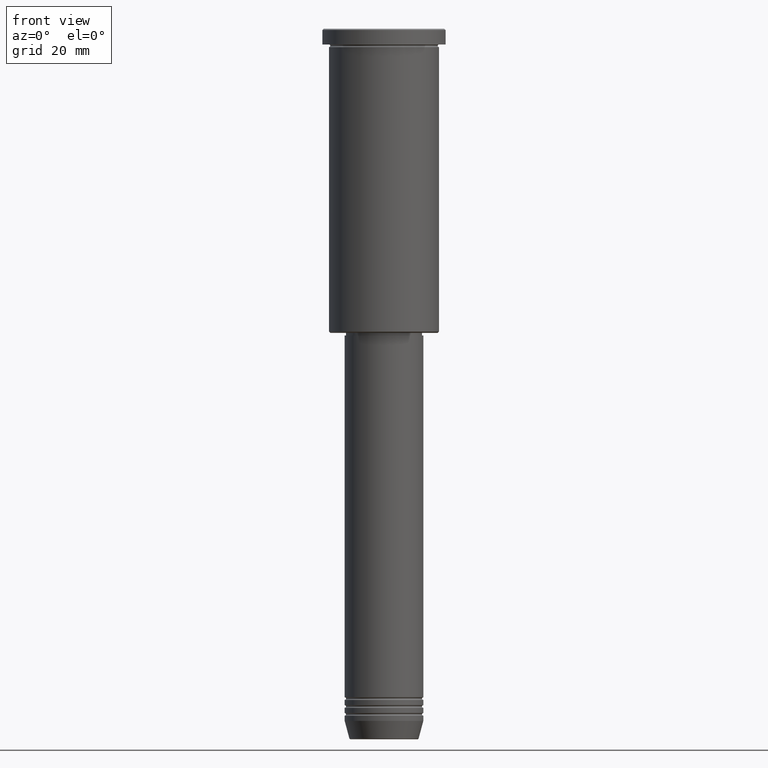
[diagram: clean part render]
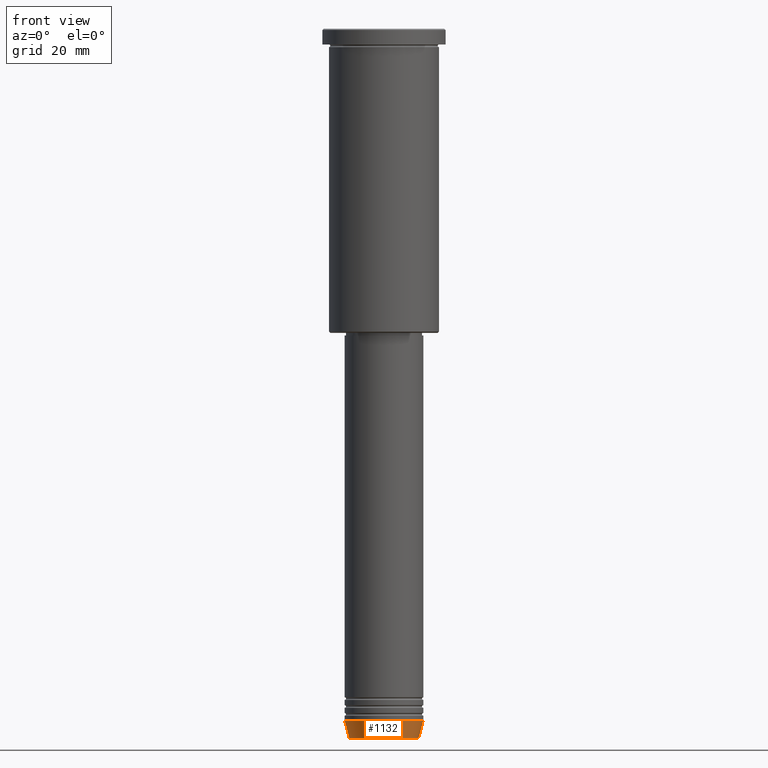
[diagram: same view with one face highlighted and labeled with its STEP entity id]
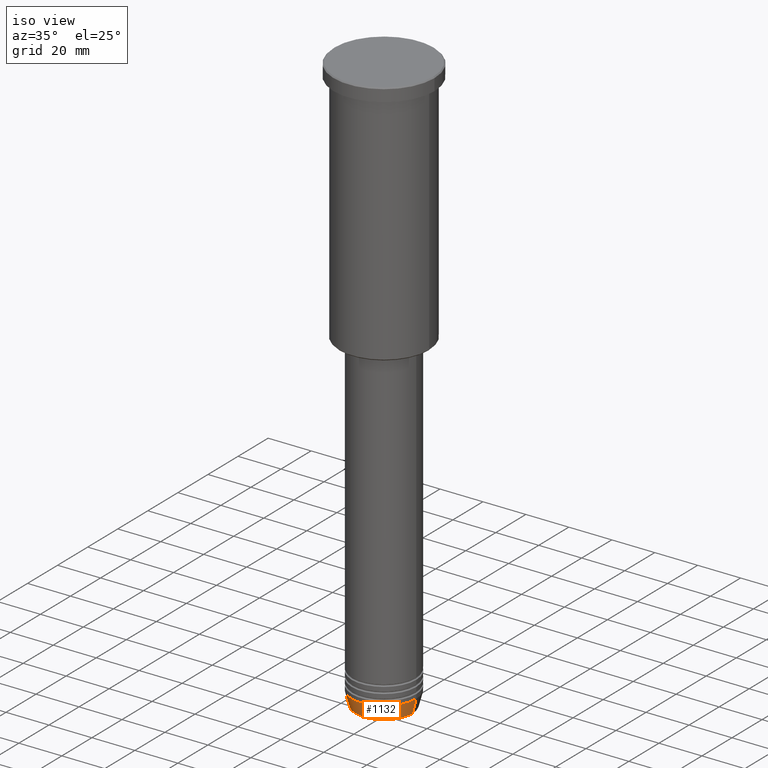
[diagram: same view with one face highlighted and labeled with its STEP entity id]
A machine part, front view. The second image highlights one B-rep face of the part: STEP entity #1132.
A second angle (iso view) of the same face is appended — the face is thin or edge-on in the first view.
In plain terms, the highlighted conical surface has half-angle 15 deg.
Its self-contained STEP definition (entity closure, byte-faithful):
#47 = DIRECTION ( 'NONE',  ( 1.000000000000000000, 0.000000000000000000, 0.000000000000000000 ) ) ;
#98 = CARTESIAN_POINT ( 'NONE',  ( -13.22365507213718772, 1.728200442216588386E-15, -270.6294095225513274 ) ) ;
#127 = CARTESIAN_POINT ( 'NONE',  ( 15.00000000000000000, 0.000000000000000000, -264.0000000000000000 ) ) ;
#152 = AXIS2_PLACEMENT_3D ( 'NONE', #393, #576, #47 ) ;
#171 = CARTESIAN_POINT ( 'NONE',  ( -15.00000000000000000, 1.836970198721029589E-15, -264.0000000000000000 ) ) ;
#227 = VERTEX_POINT ( 'NONE', #98 ) ;
#260 = CARTESIAN_POINT ( 'NONE',  ( 15.00000000000000000, 0.000000000000000000, -264.0000000000000000 ) ) ;
#261 = ORIENTED_EDGE ( 'NONE', *, *, #652, .F. ) ;
#265 = DIRECTION ( 'NONE',  ( 1.000000000000000000, 0.000000000000000000, 0.000000000000000000 ) ) ;
#276 = DIRECTION ( 'NONE',  ( 1.000000000000000000, 0.000000000000000000, 0.000000000000000000 ) ) ;
#279 = CIRCLE ( 'NONE', #470, 13.22365507213718772 ) ;
#324 = EDGE_LOOP ( 'NONE', ( #788, #595, #1096, #261 ) ) ;
#347 = DIRECTION ( 'NONE',  ( -0.2588190451025213501, 3.169619151431772337E-17, 0.9659258262890680902 ) ) ;
#393 = CARTESIAN_POINT ( 'NONE',  ( 0.000000000000000000, 0.000000000000000000, -264.0000000000000000 ) ) ;
#470 = AXIS2_PLACEMENT_3D ( 'NONE', #892, #720, #265 ) ;
#500 = EDGE_CURVE ( 'NONE', #227, #911, #797, .T. ) ;
#563 = CARTESIAN_POINT ( 'NONE',  ( -15.00000000000000000, 1.836970198721029589E-15, -264.0000000000000000 ) ) ;
#576 = DIRECTION ( 'NONE',  ( -0.000000000000000000, -0.000000000000000000, 1.000000000000000000 ) ) ;
#595 = ORIENTED_EDGE ( 'NONE', *, *, #837, .T. ) ;
#628 = CIRCLE ( 'NONE', #152, 15.00000000000000000 ) ;
#652 = EDGE_CURVE ( 'NONE', #911, #699, #628, .T. ) ;
#663 = EDGE_CURVE ( 'NONE', #1146, #699, #1116, .T. ) ;
#699 = VERTEX_POINT ( 'NONE', #260 ) ;
#720 = DIRECTION ( 'NONE',  ( -0.000000000000000000, -0.000000000000000000, 1.000000000000000000 ) ) ;
#724 = VECTOR ( 'NONE', #347, 1000.000000000000000 ) ;
#742 = DIRECTION ( 'NONE',  ( -0.000000000000000000, -0.000000000000000000, 1.000000000000000000 ) ) ;
#748 = CARTESIAN_POINT ( 'NONE',  ( 0.000000000000000000, 0.000000000000000000, -264.0000000000000000 ) ) ;
#776 = DIRECTION ( 'NONE',  ( 0.2588190451025213501, 0.000000000000000000, 0.9659258262890680902 ) ) ;
#788 = ORIENTED_EDGE ( 'NONE', *, *, #500, .F. ) ;
#797 = LINE ( 'NONE', #171, #724 ) ;
#837 = EDGE_CURVE ( 'NONE', #227, #1146, #279, .T. ) ;
#847 = FACE_OUTER_BOUND ( 'NONE', #324, .T. ) ;
#892 = CARTESIAN_POINT ( 'NONE',  ( 0.000000000000000000, 0.000000000000000000, -270.6294095225513274 ) ) ;
#911 = VERTEX_POINT ( 'NONE', #563 ) ;
#921 = VECTOR ( 'NONE', #776, 1000.000000000000000 ) ;
#1075 = CONICAL_SURFACE ( 'NONE', #1091, 15.00000000000000000, 0.2617993877991500740 ) ;
#1091 = AXIS2_PLACEMENT_3D ( 'NONE', #748, #742, #276 ) ;
#1095 = CARTESIAN_POINT ( 'NONE',  ( 13.22365507213718772, 0.000000000000000000, -270.6294095225513274 ) ) ;
#1096 = ORIENTED_EDGE ( 'NONE', *, *, #663, .T. ) ;
#1116 = LINE ( 'NONE', #127, #921 ) ;
#1132 = ADVANCED_FACE ( 'NONE', ( #847 ), #1075, .T. ) ;
#1146 = VERTEX_POINT ( 'NONE', #1095 ) ;